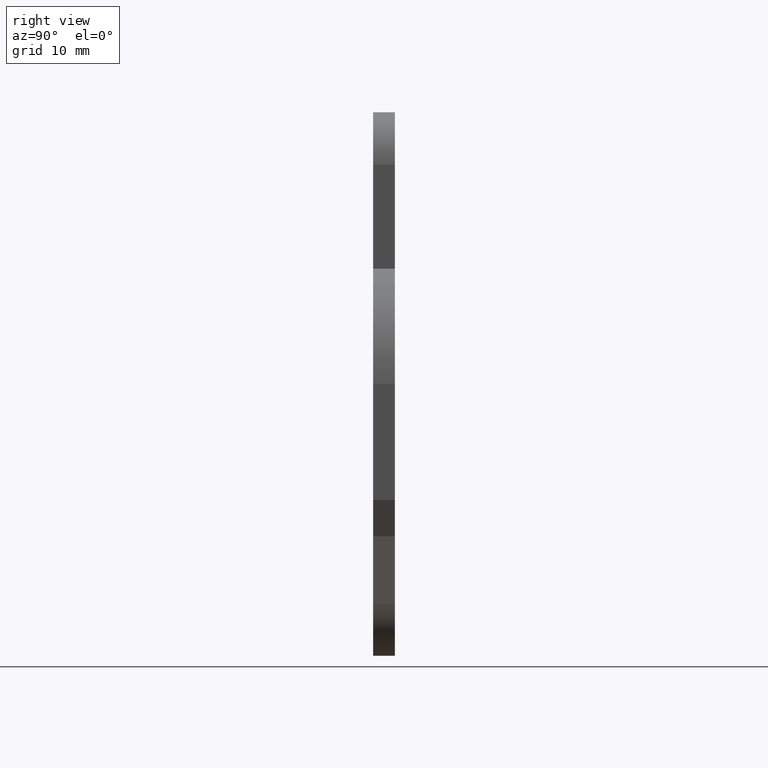
[diagram: clean part render]
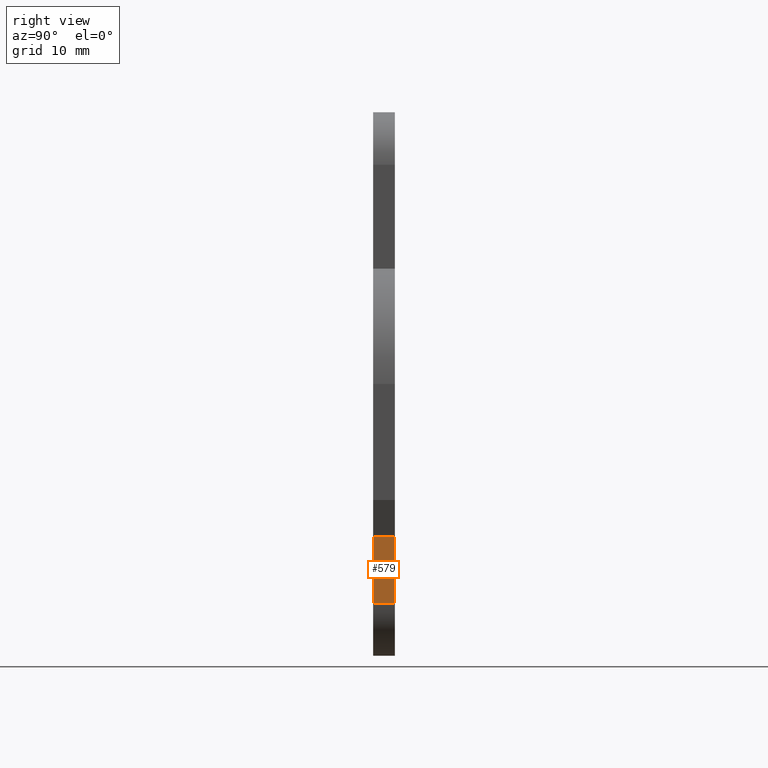
[diagram: same view with one face highlighted and labeled with its STEP entity id]
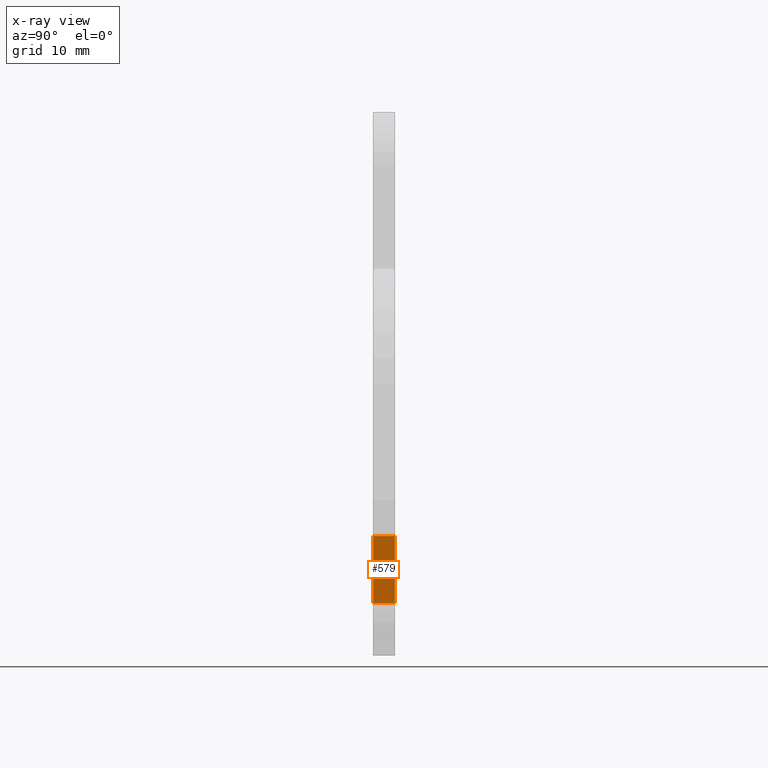
[diagram: x-ray of the same camera — body ghosted, the highlighted face saturated]
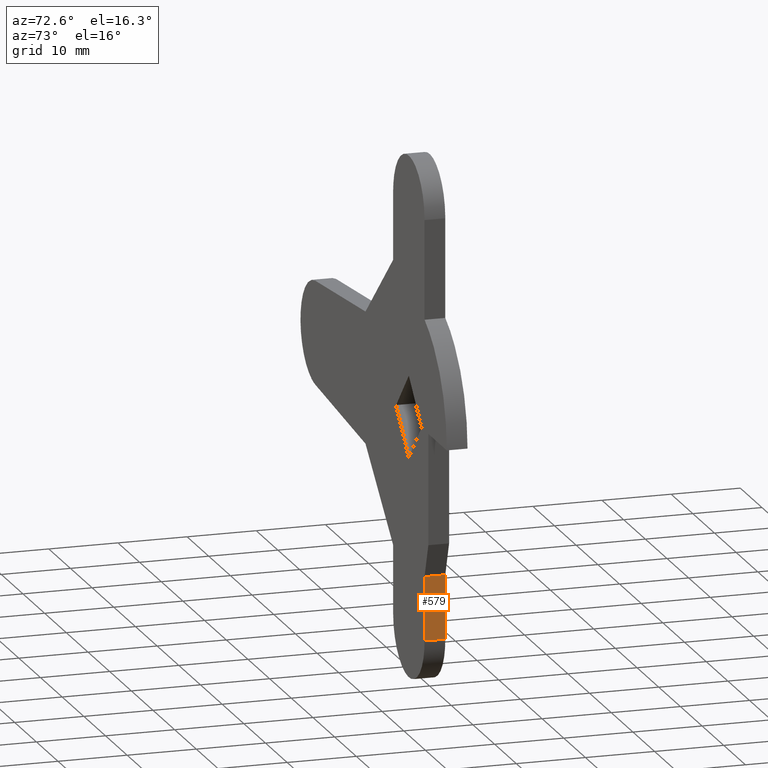
[diagram: same view with one face highlighted and labeled with its STEP entity id]
A machine part, right view. The second image highlights one B-rep face of the part: STEP entity #579.
The next image is the same camera in x-ray: the body ghosted, the highlighted face saturated — about 0% of this face is hidden behind the body in this view.
A second angle (auxiliary view) of the same face is appended — the face is thin or edge-on in the first view.
In plain terms, the highlighted face is a freeform B-spline surface patch.
Its self-contained STEP definition (entity closure, byte-faithful):
#118=CARTESIAN_POINT('',(7.249999999999901,0.0,-21.0));
#119=VERTEX_POINT('',#118);
#125=CARTESIAN_POINT('',(7.250000000000000,0.0,-30.250000000000000));
#126=VERTEX_POINT('',#125);
#127=CARTESIAN_POINT('',(7.250000000000000,0.0,-30.250000000000000));
#128=CARTESIAN_POINT('',(7.249999999999901,0.0,-21.0));
#129=QUASI_UNIFORM_CURVE('',1,(#127,#128),.UNSPECIFIED.,.F.,.U.);
#130=EDGE_CURVE('',#126,#119,#129,.T.);
#284=CARTESIAN_POINT('',(7.250000000000000,-3.0,-30.250000000000000));
#285=VERTEX_POINT('',#284);
#301=CARTESIAN_POINT('',(7.249999999999901,-3.0,-21.0));
#302=VERTEX_POINT('',#301);
#303=CARTESIAN_POINT('',(7.250000000000000,-3.0,-30.250000000000000));
#304=CARTESIAN_POINT('',(7.249999999999901,-3.0,-21.0));
#305=QUASI_UNIFORM_CURVE('',1,(#303,#304),.UNSPECIFIED.,.F.,.U.);
#306=EDGE_CURVE('',#285,#302,#305,.T.);
#556=CARTESIAN_POINT('',(7.249999999999901,-3.0,-21.0));
#557=CARTESIAN_POINT('',(7.249999999999901,0.0,-21.0));
#558=QUASI_UNIFORM_CURVE('',1,(#556,#557),.UNSPECIFIED.,.F.,.U.);
#559=EDGE_CURVE('',#302,#119,#558,.T.);
#564=CARTESIAN_POINT('',(7.249999999999901,-3.149849994185419,-30.712037482071711));
#565=CARTESIAN_POINT('',(7.249999999999901,-3.149849994185419,-20.537962269823961));
#566=CARTESIAN_POINT('',(7.249999999999901,0.149850074651688,-30.712037482071711));
#567=CARTESIAN_POINT('',(7.249999999999901,0.149850074651688,-20.537962269823961));
#568=B_SPLINE_SURFACE_WITH_KNOTS('',1,1,((#564,#566),(#565,#567)),.UNSPECIFIED.,.F.,.F.,.U.,(2,2),(2,2),(0.0,10.174075212247750),(0.0,3.299700068837106),.UNSPECIFIED.);
#569=ORIENTED_EDGE('',*,*,#130,.T.);
#570=ORIENTED_EDGE('',*,*,#559,.F.);
#571=ORIENTED_EDGE('',*,*,#306,.F.);
#572=CARTESIAN_POINT('',(7.250000000000000,-3.0,-30.250000000000000));
#573=CARTESIAN_POINT('',(7.250000000000000,0.0,-30.250000000000000));
#574=QUASI_UNIFORM_CURVE('',1,(#572,#573),.UNSPECIFIED.,.F.,.U.);
#575=EDGE_CURVE('',#285,#126,#574,.T.);
#576=ORIENTED_EDGE('',*,*,#575,.T.);
#577=EDGE_LOOP('',(#569,#570,#571,#576));
#578=FACE_OUTER_BOUND('',#577,.T.);
#579=ADVANCED_FACE('',(#578),#568,.F.);